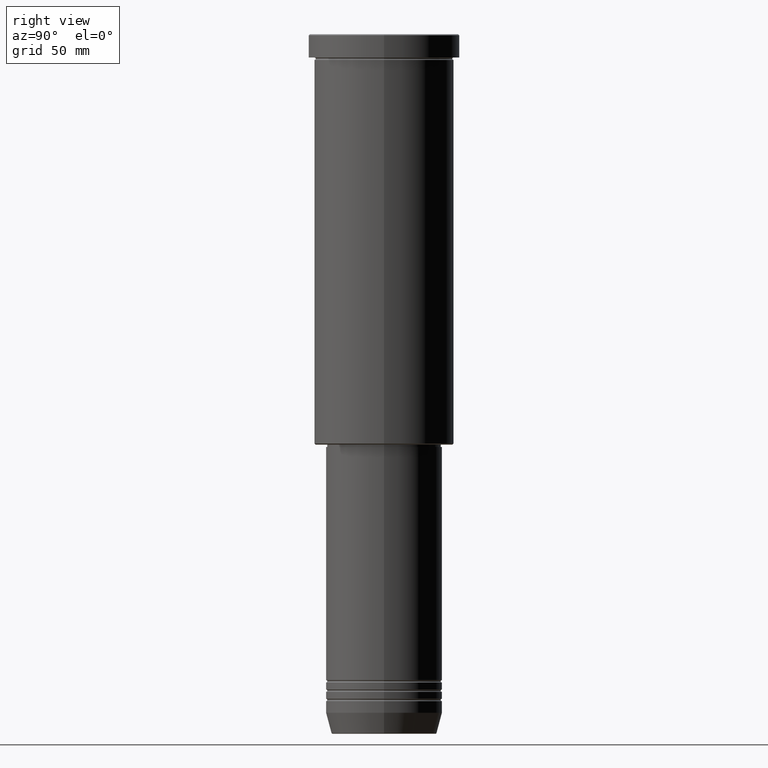
[diagram: clean part render]
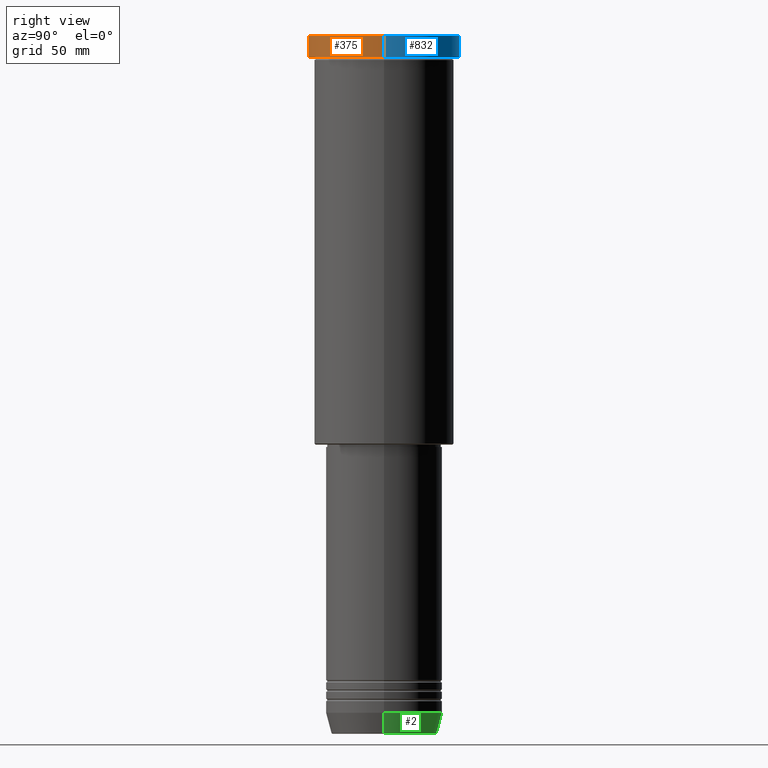
[diagram: same view with three faces highlighted in distinct colors, each labeled with its STEP entity id]
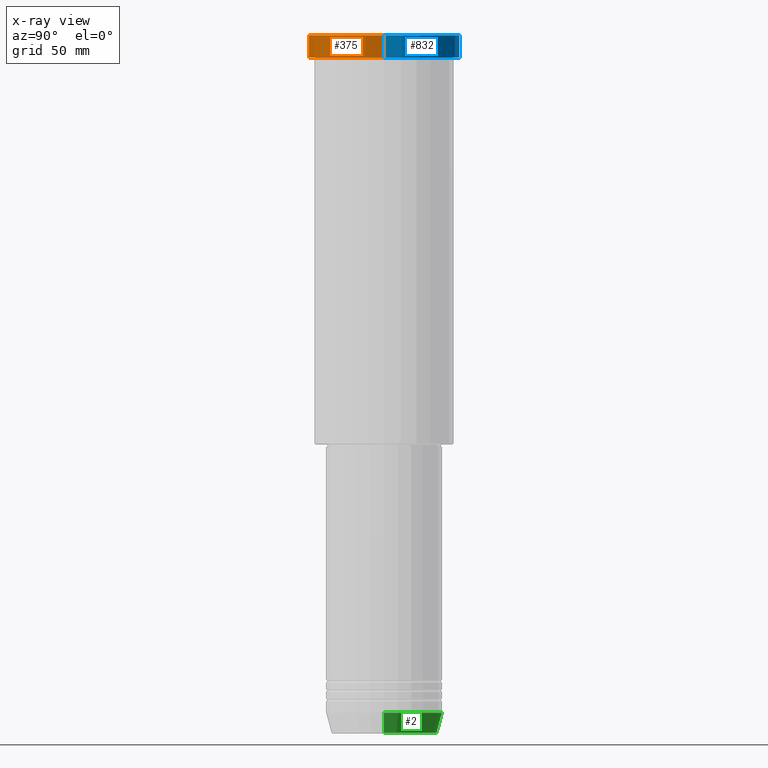
[diagram: x-ray of the same camera — body ghosted, the three highlighted faces saturated]
A machine part, right view with three faces highlighted in distinct colors.
The next image is the same camera in x-ray (body ghosted, the three faces saturated) — at least one of them is partly hidden behind the body in this view.
Their STEP definitions:

[orange] entity #375 — the highlighted cylindrical surface (partial cylindrical patch) has radius 32.5 mm, axis along (-0, -0, 1).
#25 = CARTESIAN_POINT ( 'NONE',  ( 32.50000000000000000, 0.000000000000000000, -9.999999999999992895 ) ) ;
#40 = CARTESIAN_POINT ( 'NONE',  ( 32.50000000000000000, 0.000000000000000000, -0.5000000000000004441 ) ) ;
#57 = CIRCLE ( 'NONE', #294, 32.50000000000000000 ) ;
#67 = EDGE_CURVE ( 'NONE', #480, #106, #768, .T. ) ;
#83 = CARTESIAN_POINT ( 'NONE',  ( 0.000000000000000000, 0.000000000000000000, 0.000000000000000000 ) ) ;
#88 = EDGE_CURVE ( 'NONE', #1101, #106, #57, .T. ) ;
#106 = VERTEX_POINT ( 'NONE', #354 ) ;
#128 = EDGE_LOOP ( 'NONE', ( #1109, #1104, #1179, #1002 ) ) ;
#174 = DIRECTION ( 'NONE',  ( -0.000000000000000000, -0.000000000000000000, 1.000000000000000000 ) ) ;
#177 = CYLINDRICAL_SURFACE ( 'NONE', #654, 32.50000000000000000 ) ;
#179 = DIRECTION ( 'NONE',  ( -0.000000000000000000, -0.000000000000000000, 1.000000000000000000 ) ) ;
#254 = DIRECTION ( 'NONE',  ( 0.000000000000000000, 0.000000000000000000, -1.000000000000000000 ) ) ;
#294 = AXIS2_PLACEMENT_3D ( 'NONE', #788, #254, #794 ) ;
#296 = DIRECTION ( 'NONE',  ( 1.000000000000000000, 0.000000000000000000, 0.000000000000000000 ) ) ;
#342 = EDGE_CURVE ( 'NONE', #502, #1101, #1181, .T. ) ;
#351 = CARTESIAN_POINT ( 'NONE',  ( 32.50000000000000000, 0.000000000000000000, 0.000000000000000000 ) ) ;
#354 = CARTESIAN_POINT ( 'NONE',  ( -32.50000000000000000, 3.980102097228898626E-15, -0.5000000000000004441 ) ) ;
#355 = FACE_OUTER_BOUND ( 'NONE', #128, .T. ) ;
#375 = ADVANCED_FACE ( 'NONE', ( #355 ), #177, .T. ) ;
#448 = AXIS2_PLACEMENT_3D ( 'NONE', #1072, #174, #530 ) ;
#452 = EDGE_CURVE ( 'NONE', #480, #502, #847, .T. ) ;
#480 = VERTEX_POINT ( 'NONE', #823 ) ;
#493 = DIRECTION ( 'NONE',  ( -0.000000000000000000, -0.000000000000000000, 1.000000000000000000 ) ) ;
#502 = VERTEX_POINT ( 'NONE', #25 ) ;
#530 = DIRECTION ( 'NONE',  ( 1.000000000000000000, 0.000000000000000000, 0.000000000000000000 ) ) ;
#614 = VECTOR ( 'NONE', #691, 1000.000000000000000 ) ;
#654 = AXIS2_PLACEMENT_3D ( 'NONE', #83, #493, #296 ) ;
#691 = DIRECTION ( 'NONE',  ( -0.000000000000000000, -0.000000000000000000, 1.000000000000000000 ) ) ;
#768 = LINE ( 'NONE', #1132, #614 ) ;
#788 = CARTESIAN_POINT ( 'NONE',  ( 0.000000000000000000, 0.000000000000000000, -0.5000000000000004441 ) ) ;
#794 = DIRECTION ( 'NONE',  ( 1.000000000000000000, 0.000000000000000000, 0.000000000000000000 ) ) ;
#823 = CARTESIAN_POINT ( 'NONE',  ( -32.50000000000000000, 3.980102097228898626E-15, -9.999999999999992895 ) ) ;
#847 = CIRCLE ( 'NONE', #448, 32.50000000000000000 ) ;
#961 = VECTOR ( 'NONE', #179, 1000.000000000000000 ) ;
#1002 = ORIENTED_EDGE ( 'NONE', *, *, #88, .T. ) ;
#1072 = CARTESIAN_POINT ( 'NONE',  ( 0.000000000000000000, 0.000000000000000000, -9.999999999999992895 ) ) ;
#1101 = VERTEX_POINT ( 'NONE', #40 ) ;
#1104 = ORIENTED_EDGE ( 'NONE', *, *, #452, .T. ) ;
#1109 = ORIENTED_EDGE ( 'NONE', *, *, #67, .F. ) ;
#1132 = CARTESIAN_POINT ( 'NONE',  ( -32.50000000000000000, 3.980102097228898626E-15, 0.000000000000000000 ) ) ;
#1179 = ORIENTED_EDGE ( 'NONE', *, *, #342, .T. ) ;
#1181 = LINE ( 'NONE', #351, #961 ) ;

[blue] entity #832 — the highlighted cylindrical surface (partial cylindrical patch) has radius 32.5 mm, axis along (-0, -0, 1).
#25 = CARTESIAN_POINT ( 'NONE',  ( 32.50000000000000000, 0.000000000000000000, -9.999999999999992895 ) ) ;
#40 = CARTESIAN_POINT ( 'NONE',  ( 32.50000000000000000, 0.000000000000000000, -0.5000000000000004441 ) ) ;
#50 = CARTESIAN_POINT ( 'NONE',  ( 0.000000000000000000, 0.000000000000000000, -9.999999999999992895 ) ) ;
#67 = EDGE_CURVE ( 'NONE', #480, #106, #768, .T. ) ;
#106 = VERTEX_POINT ( 'NONE', #354 ) ;
#146 = ORIENTED_EDGE ( 'NONE', *, *, #342, .F. ) ;
#179 = DIRECTION ( 'NONE',  ( -0.000000000000000000, -0.000000000000000000, 1.000000000000000000 ) ) ;
#226 = AXIS2_PLACEMENT_3D ( 'NONE', #803, #612, #729 ) ;
#227 = ORIENTED_EDGE ( 'NONE', *, *, #482, .T. ) ;
#324 = DIRECTION ( 'NONE',  ( -0.000000000000000000, -0.000000000000000000, 1.000000000000000000 ) ) ;
#342 = EDGE_CURVE ( 'NONE', #502, #1101, #1181, .T. ) ;
#351 = CARTESIAN_POINT ( 'NONE',  ( 32.50000000000000000, 0.000000000000000000, 0.000000000000000000 ) ) ;
#354 = CARTESIAN_POINT ( 'NONE',  ( -32.50000000000000000, 3.980102097228898626E-15, -0.5000000000000004441 ) ) ;
#366 = EDGE_LOOP ( 'NONE', ( #227, #1127, #810, #146 ) ) ;
#376 = EDGE_CURVE ( 'NONE', #106, #1101, #921, .T. ) ;
#480 = VERTEX_POINT ( 'NONE', #823 ) ;
#482 = EDGE_CURVE ( 'NONE', #502, #480, #902, .T. ) ;
#486 = CARTESIAN_POINT ( 'NONE',  ( 0.000000000000000000, 0.000000000000000000, -0.5000000000000004441 ) ) ;
#502 = VERTEX_POINT ( 'NONE', #25 ) ;
#579 = DIRECTION ( 'NONE',  ( 0.000000000000000000, 0.000000000000000000, -1.000000000000000000 ) ) ;
#609 = CYLINDRICAL_SURFACE ( 'NONE', #226, 32.50000000000000000 ) ;
#612 = DIRECTION ( 'NONE',  ( -0.000000000000000000, -0.000000000000000000, 1.000000000000000000 ) ) ;
#614 = VECTOR ( 'NONE', #691, 1000.000000000000000 ) ;
#671 = DIRECTION ( 'NONE',  ( 1.000000000000000000, 0.000000000000000000, 0.000000000000000000 ) ) ;
#691 = DIRECTION ( 'NONE',  ( -0.000000000000000000, -0.000000000000000000, 1.000000000000000000 ) ) ;
#729 = DIRECTION ( 'NONE',  ( 1.000000000000000000, 0.000000000000000000, 0.000000000000000000 ) ) ;
#768 = LINE ( 'NONE', #1132, #614 ) ;
#803 = CARTESIAN_POINT ( 'NONE',  ( 0.000000000000000000, 0.000000000000000000, 0.000000000000000000 ) ) ;
#810 = ORIENTED_EDGE ( 'NONE', *, *, #376, .T. ) ;
#823 = CARTESIAN_POINT ( 'NONE',  ( -32.50000000000000000, 3.980102097228898626E-15, -9.999999999999992895 ) ) ;
#832 = ADVANCED_FACE ( 'NONE', ( #883 ), #609, .T. ) ;
#883 = FACE_OUTER_BOUND ( 'NONE', #366, .T. ) ;
#902 = CIRCLE ( 'NONE', #998, 32.50000000000000000 ) ;
#921 = CIRCLE ( 'NONE', #1075, 32.50000000000000000 ) ;
#961 = VECTOR ( 'NONE', #179, 1000.000000000000000 ) ;
#998 = AXIS2_PLACEMENT_3D ( 'NONE', #50, #324, #671 ) ;
#1038 = DIRECTION ( 'NONE',  ( 1.000000000000000000, 0.000000000000000000, 0.000000000000000000 ) ) ;
#1075 = AXIS2_PLACEMENT_3D ( 'NONE', #486, #579, #1038 ) ;
#1101 = VERTEX_POINT ( 'NONE', #40 ) ;
#1127 = ORIENTED_EDGE ( 'NONE', *, *, #67, .T. ) ;
#1132 = CARTESIAN_POINT ( 'NONE',  ( -32.50000000000000000, 3.980102097228898626E-15, 0.000000000000000000 ) ) ;
#1181 = LINE ( 'NONE', #351, #961 ) ;

[green] entity #2 — the highlighted conical surface has half-angle 15 deg.
#2 = ADVANCED_FACE ( 'NONE', ( #681 ), #160, .T. ) ;
#22 = ORIENTED_EDGE ( 'NONE', *, *, #331, .F. ) ;
#68 = CARTESIAN_POINT ( 'NONE',  ( 25.00000000000000000, 0.000000000000000000, -291.0000000000000000 ) ) ;
#99 = DIRECTION ( 'NONE',  ( -0.000000000000000000, -0.000000000000000000, 1.000000000000000000 ) ) ;
#107 = EDGE_LOOP ( 'NONE', ( #668, #923, #22, #950 ) ) ;
#160 = CONICAL_SURFACE ( 'NONE', #182, 25.00000000000000000, 0.2617993877991502960 ) ;
#182 = AXIS2_PLACEMENT_3D ( 'NONE', #864, #898, #786 ) ;
#210 = CARTESIAN_POINT ( 'NONE',  ( 25.00000000000000000, 0.000000000000000000, -291.0000000000000000 ) ) ;
#247 = EDGE_CURVE ( 'NONE', #783, #770, #1017, .T. ) ;
#331 = EDGE_CURVE ( 'NONE', #866, #740, #805, .T. ) ;
#436 = DIRECTION ( 'NONE',  ( -0.2588190451025215166, 3.169619151431774802E-17, 0.9659258262890679791 ) ) ;
#442 = DIRECTION ( 'NONE',  ( 1.000000000000000000, 0.000000000000000000, 0.000000000000000000 ) ) ;
#464 = AXIS2_PLACEMENT_3D ( 'NONE', #1173, #989, #442 ) ;
#526 = LINE ( 'NONE', #973, #585 ) ;
#585 = VECTOR ( 'NONE', #436, 1000.000000000000114 ) ;
#594 = LINE ( 'NONE', #210, #1082 ) ;
#668 = ORIENTED_EDGE ( 'NONE', *, *, #247, .T. ) ;
#681 = FACE_OUTER_BOUND ( 'NONE', #107, .T. ) ;
#704 = CARTESIAN_POINT ( 'NONE',  ( 22.68775668727494477, 0.000000000000000000, -299.6294095225512137 ) ) ;
#740 = VERTEX_POINT ( 'NONE', #858 ) ;
#770 = VERTEX_POINT ( 'NONE', #792 ) ;
#783 = VERTEX_POINT ( 'NONE', #704 ) ;
#786 = DIRECTION ( 'NONE',  ( 1.000000000000000000, 0.000000000000000000, 0.000000000000000000 ) ) ;
#792 = CARTESIAN_POINT ( 'NONE',  ( -22.68775668727494477, 2.920032929279452581E-15, -299.6294095225512137 ) ) ;
#805 = CIRCLE ( 'NONE', #826, 25.00000000000000000 ) ;
#813 = CARTESIAN_POINT ( 'NONE',  ( 0.000000000000000000, 0.000000000000000000, -291.0000000000000000 ) ) ;
#826 = AXIS2_PLACEMENT_3D ( 'NONE', #813, #99, #1163 ) ;
#845 = EDGE_CURVE ( 'NONE', #770, #740, #526, .T. ) ;
#858 = CARTESIAN_POINT ( 'NONE',  ( -25.00000000000000000, 3.061616997868383043E-15, -291.0000000000000000 ) ) ;
#864 = CARTESIAN_POINT ( 'NONE',  ( 0.000000000000000000, 0.000000000000000000, -291.0000000000000000 ) ) ;
#866 = VERTEX_POINT ( 'NONE', #68 ) ;
#898 = DIRECTION ( 'NONE',  ( -0.000000000000000000, -0.000000000000000000, 1.000000000000000000 ) ) ;
#923 = ORIENTED_EDGE ( 'NONE', *, *, #845, .T. ) ;
#950 = ORIENTED_EDGE ( 'NONE', *, *, #1151, .F. ) ;
#973 = CARTESIAN_POINT ( 'NONE',  ( -25.00000000000000000, 3.061616997868383043E-15, -291.0000000000000000 ) ) ;
#989 = DIRECTION ( 'NONE',  ( -0.000000000000000000, -0.000000000000000000, 1.000000000000000000 ) ) ;
#1017 = CIRCLE ( 'NONE', #464, 22.68775668727494477 ) ;
#1035 = DIRECTION ( 'NONE',  ( 0.2588190451025215166, 0.000000000000000000, 0.9659258262890679791 ) ) ;
#1082 = VECTOR ( 'NONE', #1035, 1000.000000000000114 ) ;
#1151 = EDGE_CURVE ( 'NONE', #783, #866, #594, .T. ) ;
#1163 = DIRECTION ( 'NONE',  ( 1.000000000000000000, 0.000000000000000000, 0.000000000000000000 ) ) ;
#1173 = CARTESIAN_POINT ( 'NONE',  ( 0.000000000000000000, 0.000000000000000000, -299.6294095225512137 ) ) ;